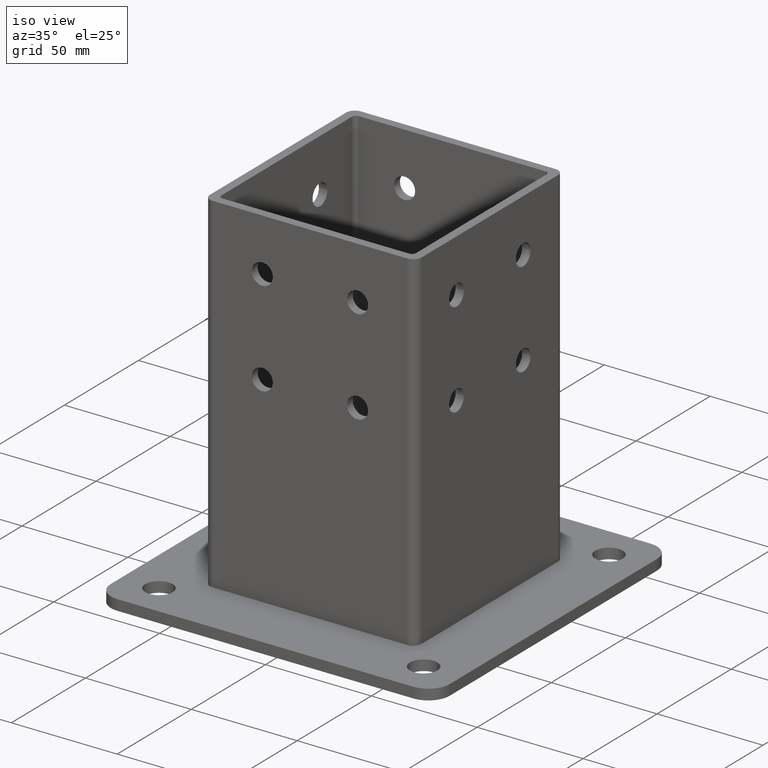
[diagram: clean part render]
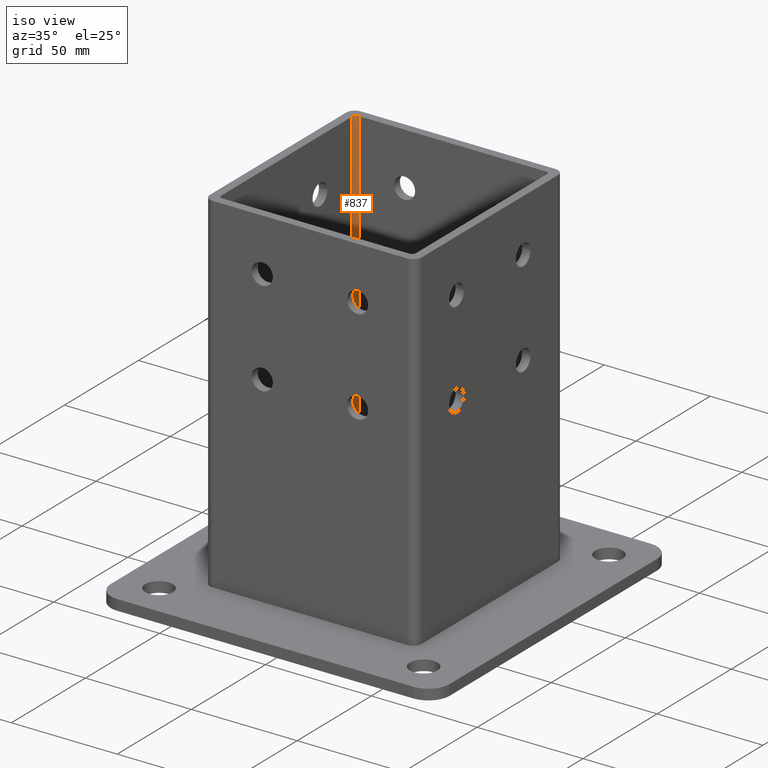
[diagram: same view with one face highlighted and labeled with its STEP entity id]
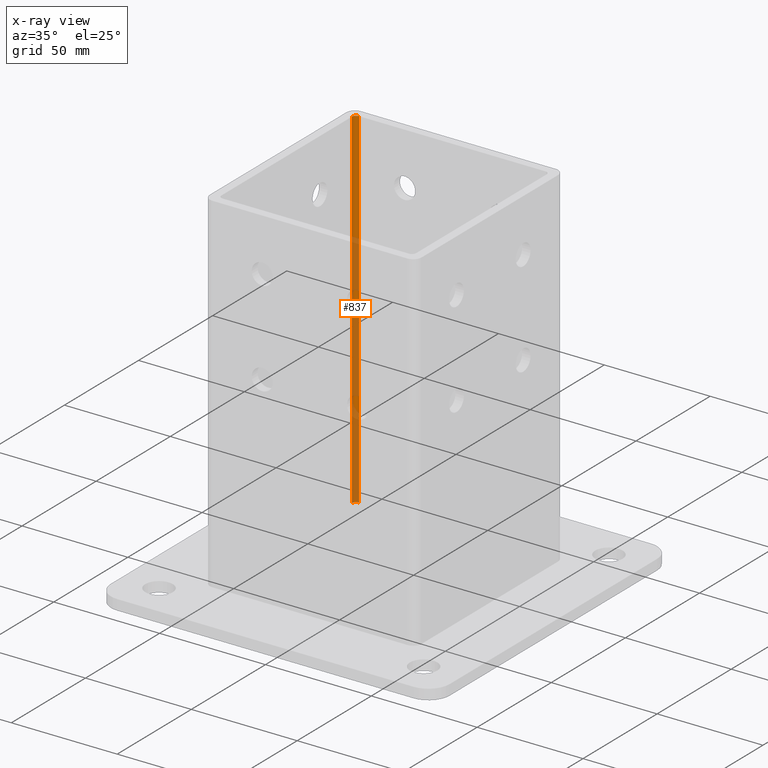
[diagram: x-ray of the same camera — body ghosted, the highlighted face saturated]
A machine part, iso view. The second image highlights one B-rep face of the part: STEP entity #837.
The next image is the same camera in x-ray: the body ghosted, the highlighted face saturated — about 63% of this face is hidden behind the body in this view.
In plain terms, the highlighted cylindrical surface (edge-blend (fillet) strip) has radius 2 mm, axis along (0, 0, 1).
Its self-contained STEP definition (entity closure, byte-faithful):
#593=CARTESIAN_POINT('',(-43.999995226736345,125.999993541799140,170.000004028592830));
#594=VERTEX_POINT('',#593);
#646=CARTESIAN_POINT('',(-45.999995226736345,123.999993541799140,170.000004028592830));
#647=VERTEX_POINT('',#646);
#654=CARTESIAN_POINT('',(-43.999995226736345,123.999993541799140,170.000004028592830));
#655=DIRECTION('',(0.0,0.0,1.0));
#656=DIRECTION('',(0.0,1.0,0.0));
#657=AXIS2_PLACEMENT_3D('',#654,#655,#656);
#658=CIRCLE('',#657,2.0);
#659=EDGE_CURVE('',#594,#647,#658,.T.);
#711=CARTESIAN_POINT('',(-43.999995226736345,125.999993541799140,5.0));
#712=VERTEX_POINT('',#711);
#713=CARTESIAN_POINT('',(-45.999995226736345,123.999993541799140,5.0));
#714=VERTEX_POINT('',#713);
#715=CARTESIAN_POINT('',(-43.999995226736345,123.999993541799140,5.0));
#716=DIRECTION('',(0.0,0.0,1.0));
#717=DIRECTION('',(0.0,1.0,0.0));
#718=AXIS2_PLACEMENT_3D('',#715,#716,#717);
#719=CIRCLE('',#718,2.0);
#720=EDGE_CURVE('',#712,#714,#719,.T.);
#816=CARTESIAN_POINT('',(-43.999995226736345,123.999993541799140,5.0));
#817=DIRECTION('',(0.0,0.0,1.0));
#818=DIRECTION('',(0.0,1.0,0.0));
#819=AXIS2_PLACEMENT_3D('',#816,#817,#818);
#820=CYLINDRICAL_SURFACE('',#819,2.0);
#821=CARTESIAN_POINT('',(-43.999995226736345,125.999993541799140,5.0));
#822=DIRECTION('',(0.0,0.0,1.0));
#823=VECTOR('',#822,165.000004028592830);
#824=LINE('',#821,#823);
#825=EDGE_CURVE('',#712,#594,#824,.T.);
#826=ORIENTED_EDGE('',*,*,#825,.T.);
#827=ORIENTED_EDGE('',*,*,#659,.T.);
#828=CARTESIAN_POINT('',(-45.999995226736345,123.999993541799140,5.0));
#829=DIRECTION('',(0.0,0.0,1.0));
#830=VECTOR('',#829,165.000004028592830);
#831=LINE('',#828,#830);
#832=EDGE_CURVE('',#714,#647,#831,.T.);
#833=ORIENTED_EDGE('',*,*,#832,.F.);
#834=ORIENTED_EDGE('',*,*,#720,.F.);
#835=EDGE_LOOP('',(#826,#827,#833,#834));
#836=FACE_OUTER_BOUND('',#835,.T.);
#837=ADVANCED_FACE('',(#836),#820,.F.);